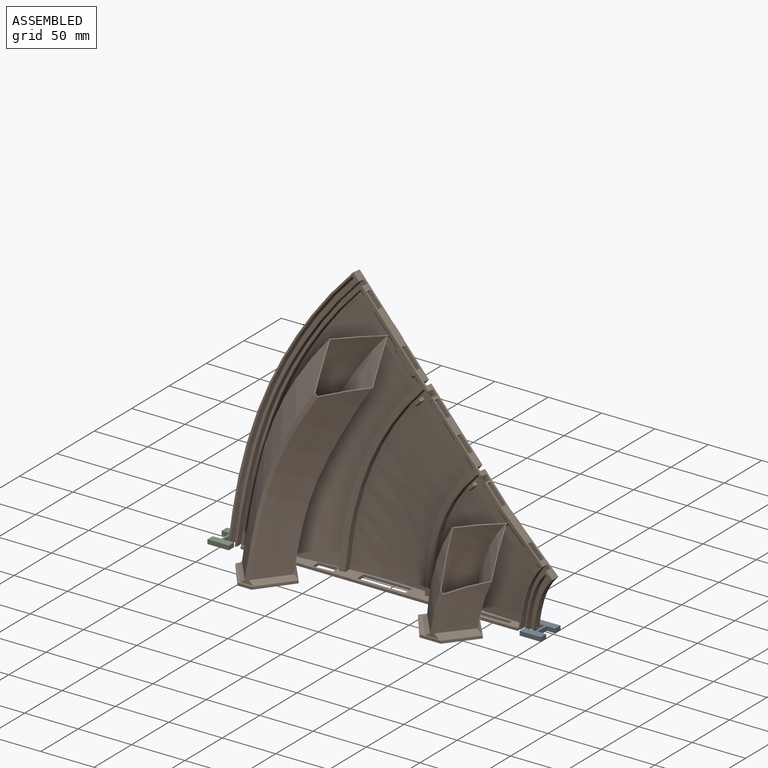
[diagram: assembled view]
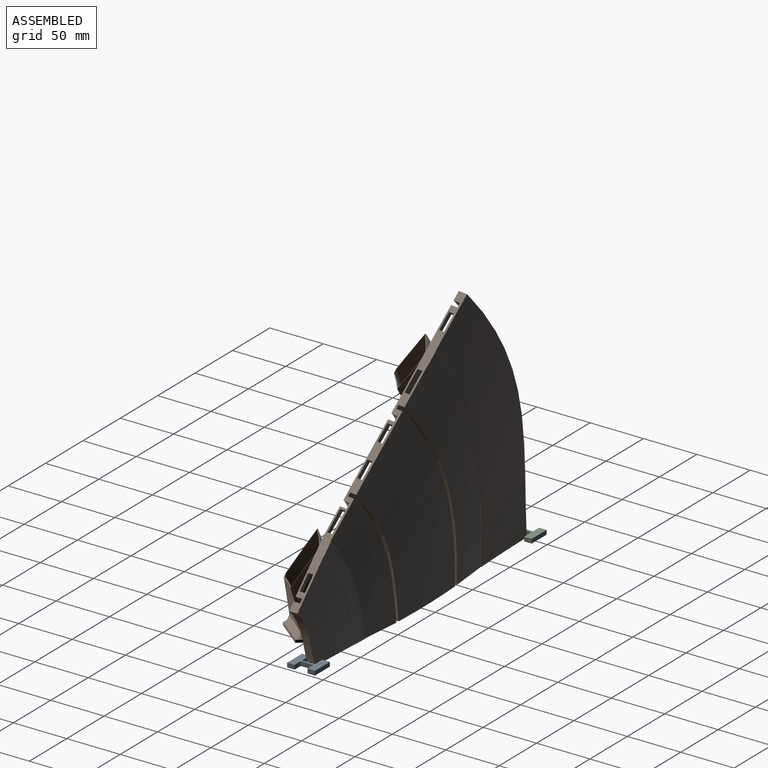
[diagram: assembled view, second angle]
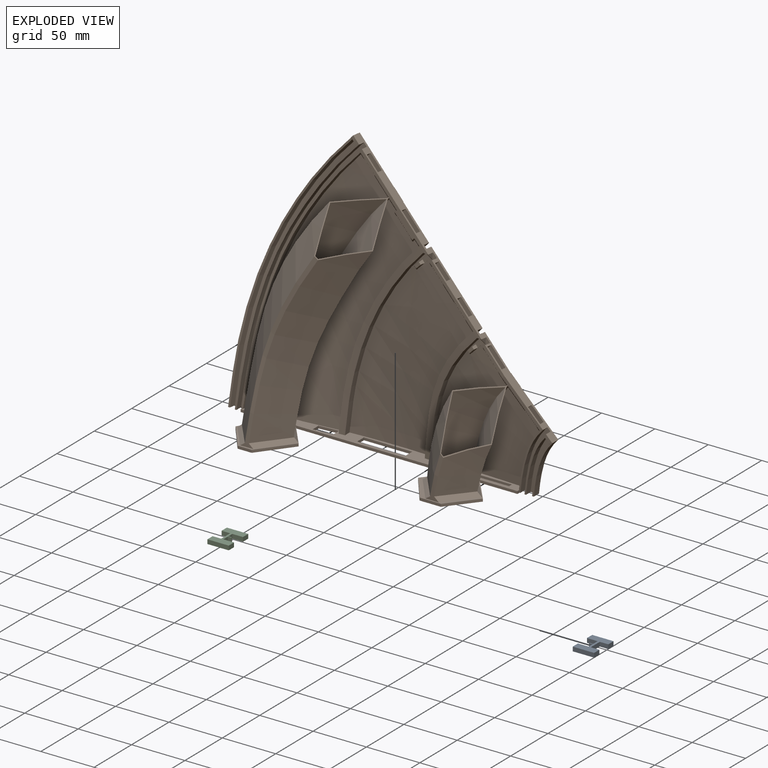
[diagram: exploded view]
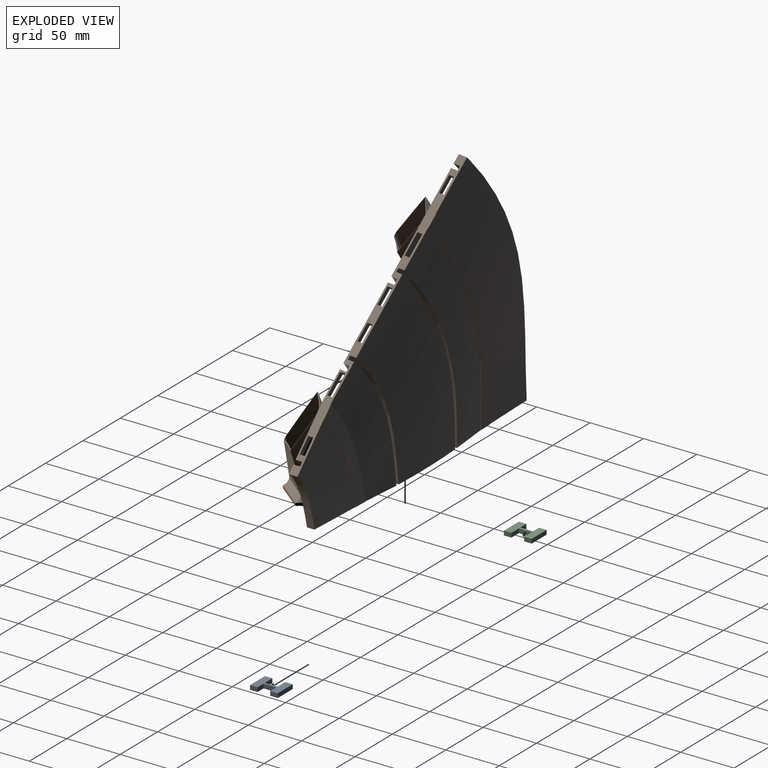
[diagram: exploded view, second angle]
ASSEMBLY  parts=3 mates=2
PART A: 18 faces, bbox 20x26x4 mm
  f0: plane 10x4mm, normal (0,1,0), area 40mm2, adj f1,f15,f16,f17
  f1: plane 6x4mm, normal (1,0,0), area 24mm2, adj f0,f2,f16,f17
  f2: plane 4x3.44mm, normal (0,-1,0), area 13.7mm2, adj f1,f3,f16,f17
  f3: plane 4x0.7mm, normal (1,0,0), area 2.8mm2, adj f2,f4,f16,f17
  f4: plane 4x3.44mm, normal (0,1,0), area 13.7mm2, adj f3,f5,f16,f17
  f5: plane 5.3x4mm, normal (1,0,0), area 21.2mm2, adj f4,f6,f16,f17
  f6: plane 10x4mm, normal (0,-1,0), area 40mm2, adj f5,f7,f16,f17
  f7: plane 7x4mm, normal (1,0,0), area 28mm2, adj f6,f8,f16,f17
  f8: plane 20x4mm, normal (0,1,0), area 80mm2, adj f7,f9,f16,f17
  f9: plane 7x4mm, normal (-1,0,0), area 28mm2, adj f8,f10,f16,f17
  f10: plane 8x4mm, normal (0,-1,0), area 32mm2, adj f9,f11,f16,f17
  f11: plane 12x4mm, normal (-1,0,0), area 48mm2, adj f10,f12,f16,f17
  f12: plane 8x4mm, normal (0,1,0), area 32mm2, adj f11,f13,f16,f17
  f13: plane 7x4mm, normal (-1,0,0), area 28mm2, adj f12,f14,f16,f17
  f14: plane 20x4mm, normal (0,-1,0), area 80mm2, adj f13,f15,f16,f17
  f15: plane 7x4mm, normal (1,0,0), area 28mm2, adj f0,f14,f16,f17
  f16: plane 26x20mm, normal (0,0,1), area 306.4mm2, adj f0,f1,f2,f3,f4,f5,f6,f7
  f17: plane 26x20mm, normal (0,0,-1), area 306.4mm2, adj f0,f1,f2,f3,f4,f5,f6,f7
PART B: 279 faces, bbox 304.8x404.9x88.9 mm
  f0: plane 6.18x4.77mm, normal (0.71,0.7,0.06), area 18.6mm2, adj f1,f143,f150,f194,f276
  f1: bspline ~224.14x154.76mm, area 4215.4mm2, adj f0,f2,f4,f38,f48,f53,f64,f65
  f2: plane 6.18x4.77mm, normal (-0.71,-0.7,-0.06), area 18.6mm2, adj f1,f3,f4,f5,f276
  f3: plane 5.69x3.08mm, normal (0,0.09,-1), area 13.7mm2, adj f2,f4,f5,f59,f65,f142
  f4: plane 0.08x0.01mm, normal (0,-1,-0.09), area 0mm2, adj f1,f2,f3,f65
  f5: plane 6.21x0.96mm, normal (0.71,-0.7,-0.06), area 3.6mm2, adj f2,f3,f59,f195
  f6: plane 6.18x4.77mm, normal (0.71,0.7,0.06), area 18.6mm2, adj f7,f12,f146,f148,f273
  f7: bspline ~276.83x267.27mm, area 11521.6mm2, adj f6,f9,f10,f38,f49,f54,f60,f63
  f8: plane 96.18x8.43mm, normal (0,0.09,-1), area 372.8mm2, adj f11,f12,f40,f43,f59,f60,f61,f106
  f9: plane 6.19x4.78mm, normal (-0.71,-0.7,-0.06), area 18.6mm2, adj f7,f10,f11,f273
  f10: plane 5.65x3.01mm, normal (0,0.09,-1), area 13.5mm2, adj f7,f9,f11,f59,f145
  f11: plane 6.21x0.9mm, normal (0.71,-0.7,-0.06), area 3.2mm2, adj f8,f9,f10,f59
  f12: plane 6.37x2.7mm, normal (0.71,-0.7,-0.06), area 19mm2, adj f6,f8,f60,f146
  f13: bspline ~224.13x147.85mm, area 2549.2mm2, adj f20,f22,f191,f203,f240,f241,f269
  f14: bspline ~224.14x143.78mm, area 3222.8mm2, adj f24,f38,f39,f191,f244,f252,f253,f266
  f15: bspline ~276.77x152.58mm, area 7204.8mm2, adj f29,f31,f192,f201,f226,f227,f263
  f16: bspline ~276.75x153.18mm, area 8553.4mm2, adj f33,f36,f43,f192,f230,f255,f260
  f17: plane 204.05x204.05mm, normal (0.71,-0.71,0), area 2806.1mm2, adj f41,f57,f58,f69,f70,f71,f72,f73
  f18: plane 51.4x44.19mm, normal (0.71,-0.71,0), area 1570.4mm2, adj f236,f237,f238,f239,f241,f242,f244,f245
  f19: plane 54.04x40.72mm, normal (0.71,-0.71,0), area 1354.8mm2, adj f222,f223,f224,f225,f227,f228,f230,f231
  f20: bspline ~224.14x142.86mm, area 3207.3mm2, adj f13,f23,f191,f203,f204,f240,f241,f265
  f21: bspline ~224.13x149.01mm, area 2489mm2, adj f25,f37,f42,f191,f199,f242,f250,f251
  f22: bspline ~224.14x146.91mm, area 1528.4mm2, adj f13,f27,f191,f240
  f23: bspline ~224.14x141.14mm, area 2196.3mm2, adj f20,f27,f191,f240
  f24: bspline ~224.14x141.62mm, area 2132.5mm2, adj f14,f26,f191,f253
  f25: bspline ~224.14x147.52mm, area 1388.3mm2, adj f21,f26,f191,f250
  f26: bspline ~41.18x34.78mm, area 162.6mm2, adj f24,f25,f191,f243,f250,f253
  f27: bspline ~36.33x24.57mm, area 112.4mm2, adj f22,f23,f191,f240
  f28: bspline ~276.77x155.21mm, area 7250.6mm2, adj f30,f38,f40,f192,f200,f228,f257,f262
  f29: bspline ~302.64x152.58mm, area 8456.9mm2, adj f15,f32,f192,f201,f202,f226,f227,f259
  f30: bspline ~276.77x151.93mm, area 6539.8mm2, adj f28,f34,f192,f256,f257
  f31: bspline ~183.93x112.04mm, area 6575.4mm2, adj f15,f35,f192,f226
  f32: bspline ~302.64x150.92mm, area 6642.8mm2, adj f29,f35,f192,f226
  f33: bspline ~276.71x151.56mm, area 6663.6mm2, adj f16,f34,f192,f254,f255
  f34: bspline ~163.78x93.47mm, area 684.5mm2, adj f30,f33,f192,f229,f254,f256
  f35: bspline ~160.37x84.69mm, area 510.8mm2, adj f31,f32,f192,f226
  f36: plane 31.19x31.19mm, normal (-0.71,0.71,0), area 231mm2, adj f16,f41,f43,f55,f56,f196,f197,f218
  f37: plane 31.47x31.47mm, normal (-0.71,0.71,0), area 319.1mm2, adj f21,f42,f47,f52,f57,f198,f199,f214
  f38: plane 120.52x120.52mm, normal (-0.71,0.71,0), area 1423.4mm2, adj f1,f7,f14,f28,f39,f40,f44,f45
  f39: bspline ~224.13x118.78mm, area 653mm2, adj f14,f38,f48,f110,f177,f191
  f40: bspline ~276.75x128.43mm, area 1613.7mm2, adj f8,f28,f38,f46,f187,f192
  f41: bspline ~302.64x127.6mm, area 401.5mm2, adj f17,f36,f56,f81,f106,f180,f181,f197
  f42: bspline ~86.4x36.31mm, area 650.1mm2, adj f21,f37,f52,f174,f178,f191
  f43: bspline ~276.75x128.43mm, area 1627.7mm2, adj f8,f16,f36,f55,f181,f188,f192
  f44: bspline ~276.83x126.75mm, area 1192.9mm2, adj f38,f45,f51,f185
  f45: bspline ~276.83x161.83mm, area 7435.1mm2, adj f38,f44,f46,f61,f135,f136,f160,f161
  f46: bspline ~276.78x133.87mm, area 1492.3mm2, adj f38,f40,f45,f187
  f47: bspline ~151.31x95.27mm, area 362.2mm2, adj f37,f52,f57,f178
  f48: bspline ~84.77x45.6mm, area 590mm2, adj f1,f38,f39,f177
  f49: bspline ~224.14x118.64mm, area 814mm2, adj f7,f38,f50,f168,f169
  f50: bspline ~224.14x124.59mm, area 794mm2, adj f38,f49,f53,f59,f66,f167,f193
  f51: bspline ~176.67x80.83mm, area 1163.9mm2, adj f38,f44,f54,f60,f183
  f52: bspline ~224.13x160.99mm, area 3173.7mm2, adj f37,f42,f47,f122,f123,f125,f178
  f53: bspline ~224.14x118.55mm, area 804.8mm2, adj f1,f38,f50,f68,f144
  f54: bspline ~276.83x126.75mm, area 1185.3mm2, adj f7,f38,f51,f60
  f55: bspline ~302.64x168.95mm, area 10122.8mm2, adj f36,f43,f56,f138,f140,f141,f188
  f56: bspline ~302.64x126.11mm, area 1610.1mm2, adj f36,f41,f55,f181,f188
  f57: bspline ~151.31x96.82mm, area 92.9mm2, adj f17,f37,f47,f85,f108,f109,f174,f198
  f58: bspline ~252.35x161.91mm, area 13054.5mm2, adj f17,f59,f83,f91,f104
  f59: plane 282.77x27.24mm, normal (-1,0,0), area 1615.9mm2, adj f3,f5,f8,f10,f11,f50,f58,f66
  f60: plane 7.09x6.32mm, normal (1,0,0), area 3mm2, adj f7,f8,f12,f51,f54
  f61: plane 9.01x6.25mm, normal (0,1,0.09), area 17.5mm2, adj f8,f45,f163,f182,f186
  f62: plane 7.97x0.71mm, normal (1,0,0), area 0.1mm2, adj f83,f104
  f63: plane 21.29x5.35mm, normal (0,1,-0.05), area 44.2mm2, adj f7,f146,f147,f149,f154,f190
  f64: plane 21.2x5.57mm, normal (0,1,-0.05), area 44.6mm2, adj f1,f68,f143,f151,f152,f153,f189
  f65: plane 25.47x2.24mm, normal (1,0,0), area 0mm2, adj f1,f3,f4,f118,f171
  f66: plane 62.99x5.53mm, normal (0,0.09,-1), area 189.6mm2, adj f50,f59,f145,f167
  f67: plane 28.24x3.1mm, normal (0,0.09,-1), area 87.9mm2, adj f59,f110,f142,f172
  f68: plane 2.02x0.19mm, normal (1,0,0), area 0mm2, adj f1,f53,f64,f143
  f69: bspline ~151.32x97.25mm, area 86.8mm2, adj f17,f70,f84,f112,f164
  f70: bspline ~151.32x96.68mm, area 291.7mm2, adj f17,f69,f71,f115,f164
  f71: bspline ~151.32x99.92mm, area 238.7mm2, adj f17,f70,f72,f115
  f72: bspline ~151.31x95.4mm, area 363.1mm2, adj f17,f71,f73,f115
  f73: bspline ~151.31x97mm, area 86.9mm2, adj f17,f72,f80,f114
  f74: bspline ~151.31x99.23mm, area 242.5mm2, adj f17,f80,f85,f113
  f75: bspline ~302.64x129.68mm, area 1052.4mm2, adj f17,f59,f81,f86,f107
  f76: bspline ~302.64x126.08mm, area 1680mm2, adj f17,f77,f82,f103
  f77: bspline ~302.64x130.08mm, area 1234.6mm2, adj f17,f76,f78,f103
  f78: bspline ~302.64x127.21mm, area 1455mm2, adj f17,f77,f79,f103,f165
  f79: bspline ~302.64x127.67mm, area 471.4mm2, adj f17,f78,f83,f165
  f80: bspline ~151.31x95.37mm, area 370.3mm2, adj f17,f73,f74,f113
  f81: bspline ~302.64x126.1mm, area 1654.1mm2, adj f17,f41,f75,f106
  f82: bspline ~302.64x127.68mm, area 415.6mm2, adj f17,f59,f76,f86,f105
  f83: bspline ~302.64x126.06mm, area 1934.5mm2, adj f17,f58,f62,f79,f165
  f84: bspline ~151.32x95.55mm, area 393.3mm2, adj f17,f59,f69,f102
  f85: bspline ~151.31x95.3mm, area 408.1mm2, adj f17,f57,f59,f74,f116
  f86: bspline ~302.64x126.09mm, area 1689.5mm2, adj f17,f59,f75,f82
  f87: bspline ~276.83x129.89mm, area 597.9mm2, adj f17,f59,f88,f95,f155,f156
  f88: bspline ~276.83x126.4mm, area 1168.4mm2, adj f17,f87,f96,f155
  f89: bspline ~224.14x121.97mm, area 404.4mm2, adj f17,f59,f90,f97,f157,f158
  f90: bspline ~224.14x118.46mm, area 800mm2, adj f17,f89,f98,f158
  f91: bspline ~276.75x125.31mm, area 71.9mm2, adj f17,f58,f59,f92
  f92: bspline ~276.78x138.28mm, area 2989.3mm2, adj f17,f59,f91,f93
  f93: bspline ~276.78x125.36mm, area 68.8mm2, adj f17,f59,f92,f94
  f94: bspline ~276.83x163.01mm, area 8032.9mm2, adj f17,f59,f93,f95,f156
  f95: bspline ~276.83x126.4mm, area 1182.5mm2, adj f17,f87,f94,f156
  f96: bspline ~276.83x200.07mm, area 12675.8mm2, adj f17,f59,f88,f97,f155,f157
  f97: bspline ~224.14x118.5mm, area 813.9mm2, adj f17,f89,f96,f157
  f98: bspline ~224.14x155.42mm, area 4711mm2, adj f17,f59,f90,f99,f158
  f99: bspline ~224.13x117.77mm, area 31.8mm2, adj f17,f59,f98,f100
  f100: bspline ~224.13x130.14mm, area 1336.3mm2, adj f17,f59,f99,f101
  f101: bspline ~224.13x117.16mm, area 28.7mm2, adj f17,f59,f100,f102
  f102: bspline ~224.13x170.07mm, area 3824.5mm2, adj f17,f59,f84,f101
  f103: plane 6.57x5.96mm, normal (1,0,0), area 31mm2, adj f76,f77,f78,f105
  f104: plane 7.98x3.01mm, normal (0,1,0.09), area 24mm2, adj f58,f59,f62,f105
  f105: plane 6.99x3mm, normal (0,0.09,-1), area 21mm2, adj f59,f82,f103,f104,f165
  f106: plane 6.31x1.51mm, normal (1,0,0), area 0.1mm2, adj f8,f41,f81,f107,f179
  f107: plane 6.19x3.01mm, normal (0,1,0.09), area 18.6mm2, adj f8,f59,f75,f106
  f108: plane 1.41x0.01mm, normal (1,0,0), area 0mm2, adj f57,f109,f110
  f109: plane 3.04x0.05mm, normal (0,-1,0), area 0mm2, adj f57,f108,f110
  f110: plane 50.87x3.12mm, normal (0,0,-1), area 153.2mm2, adj f39,f59,f67,f108,f109,f172,f174,f191
  f111: plane 6.2x3mm, normal (0,1,0), area 18.6mm2, adj f59,f113,f116,f117
  f112: plane 4.08x1.11mm, normal (0,-1,0), area 3.5mm2, adj f59,f69,f115,f117,f164
  f113: plane 6.21x4.01mm, normal (1,0,0), area 0.6mm2, adj f74,f80,f111,f116,f117
  f114: plane 1.5x0.01mm, normal (1,0,0), area 0mm2, adj f73,f117
  f115: plane 6.91x6.21mm, normal (1,0,0), area 30.5mm2, adj f70,f71,f72,f112,f117,f164
  f116: plane 4.01x3.01mm, normal (0,0,-1), area 11.9mm2, adj f59,f85,f111,f113
  f117: plane 8.5x3mm, normal (0,0,-1), area 25.5mm2, adj f59,f111,f112,f113,f114,f115
  f118: plane 20.72x3mm, normal (0,0.09,-1), area 62.4mm2, adj f59,f65,f119,f121,f173
  f119: plane 9.15x4.68mm, normal (0,-1,-0.09), area 32.2mm2, adj f59,f118,f120,f171,f176
  f120: plane 20.72x4.53mm, normal (0,-0.09,1), area 94.1mm2, adj f59,f119,f121,f170,f176
  f121: plane 4.68x3mm, normal (0,1,0.09), area 14.1mm2, adj f59,f118,f120,f173
  f122: plane 16.02x3.02mm, normal (0,0,-1), area 48mm2, adj f52,f59,f123,f125
  f123: plane 9.26x4.79mm, normal (0,-1,0), area 32.5mm2, adj f52,f59,f122,f124,f178
  f124: plane 16x4.55mm, normal (0,0,1), area 72.7mm2, adj f59,f123,f125,f178
  f125: plane 9.24x4.78mm, normal (0,1,0), area 32.4mm2, adj f52,f59,f122,f124,f178
  f126: plane 9.26x4.76mm, normal (0,-1,-0.09), area 32.5mm2, adj f7,f59,f127,f129,f169
  f127: plane 16.34x4.54mm, normal (0,-0.09,1), area 74.5mm2, adj f59,f126,f128,f166,f169
  f128: plane 4.69x3mm, normal (0,1,0.09), area 14.1mm2, adj f59,f127,f129,f166
  f129: plane 16.35x3.02mm, normal (0,0.09,-1), area 49.2mm2, adj f7,f59,f126,f128
  f130: plane 9.27x4.75mm, normal (0,-1,-0.09), area 32.5mm2, adj f7,f59,f131,f133,f169
  f131: plane 16.34x4.56mm, normal (0,-0.09,1), area 74.7mm2, adj f59,f130,f132,f169
  f132: plane 9.27x4.75mm, normal (0,1,0.09), area 32.5mm2, adj f7,f59,f131,f133,f169
  f133: plane 16.35x3.01mm, normal (0,0.09,-1), area 49.2mm2, adj f7,f59,f130,f132
  f134: plane 4.68x3mm, normal (0,1,0.09), area 14.1mm2, adj f59,f135,f137,f159
  f135: plane 20.73x3.01mm, normal (0,0.09,-1), area 62.4mm2, adj f45,f59,f134,f136
  f136: plane 12.26x4.81mm, normal (0,-1,-0.09), area 46.3mm2, adj f45,f59,f135,f137,f163
  f137: plane 20.72x7.47mm, normal (0,-0.09,1), area 155.2mm2, adj f59,f134,f136,f160,f163
  f138: plane 9.47x4.87mm, normal (0,-1,-0.09), area 32.6mm2, adj f55,f59,f139,f141,f188
  f139: plane 15.94x4.59mm, normal (0,-0.09,1), area 73.4mm2, adj f59,f138,f140,f188
  f140: plane 9.43x4.84mm, normal (0,1,0.09), area 32.6mm2, adj f55,f59,f139,f141,f188
  f141: plane 15.94x3mm, normal (0,0.09,-1), area 48mm2, adj f55,f59,f138,f140
  f142: plane 9.15x6.18mm, normal (0,1,0.09), area 37.9mm2, adj f3,f59,f67,f171,f172,f176
  f143: plane 12.42x5.23mm, normal (0,0.09,-1), area 37mm2, adj f0,f64,f68,f144,f150,f153,f194
  f144: plane 6.17x0.56mm, normal (-1,0,0), area 0.1mm2, adj f53,f143,f194
  f145: plane 9.27x6.24mm, normal (0,1,0.09), area 38.3mm2, adj f7,f10,f59,f66,f167,f168,f169
  f146: plane 12.48x5.24mm, normal (0,0.09,-1), area 37.3mm2, adj f6,f7,f12,f63,f148,f154
  f147: plane 6x2.49mm, normal (0,0.09,-1), area 15mm2, adj f63,f148,f149,f154
  f148: plane 20.37x5.29mm, normal (0,-1,-0.09), area 43.8mm2, adj f6,f7,f146,f147,f149,f154,f190
  f149: plane 2.52x0.43mm, normal (1,0,0), area 0.5mm2, adj f63,f147,f148,f190
  f150: plane 20.18x5.51mm, normal (0,-1,-0.09), area 44.2mm2, adj f0,f1,f143,f151,f152,f153,f189
  f151: plane 6x2.49mm, normal (0,0.09,-1), area 15mm2, adj f64,f150,f152,f153
  f152: plane 2.55x0.65mm, normal (1,0,0), area 1.1mm2, adj f64,f150,f151,f189
  f153: plane 5.26x3.19mm, normal (-1,0,0), area 14.3mm2, adj f64,f143,f150,f151
  f154: plane 5.26x3.19mm, normal (-1,0,0), area 14.3mm2, adj f63,f146,f147,f148
  f155: bspline ~6x3mm, area 18.1mm2, adj f59,f87,f88,f96
  f156: bspline ~6x3mm, area 18mm2, adj f59,f87,f94,f95
  f157: bspline ~6.01x3mm, area 18mm2, adj f59,f89,f96,f97
  f158: bspline ~6.61x3mm, area 18.1mm2, adj f59,f89,f90,f98
  f159: plane 4.69x0.41mm, normal (-1,0,0), area 0.1mm2, adj f134,f160
  f160: plane 9.25x4.83mm, normal (0,1,0.08), area 32.1mm2, adj f45,f137,f159,f163
  f161: plane 8.98x6.26mm, normal (0,-1,-0.09), area 17.4mm2, adj f8,f45,f162,f163,f184,f185
  f162: plane 25.67x2.26mm, normal (1,0,0), area 0.3mm2, adj f8,f161,f163
  f163: bspline ~26.22x8.44mm, area 86.9mm2, adj f45,f61,f136,f137,f160,f161,f162
  f164: bspline ~1.52x1mm, area 2.1mm2, adj f69,f70,f112,f115
  f165: bspline ~1.79x1.15mm, area 2.3mm2, adj f78,f79,f83,f105
  f166: plane 6.25x4.77mm, normal (0,1,0.09), area 18.3mm2, adj f7,f127,f128,f169
  f167: plane 62.99x5.52mm, normal (0,0.09,-1), area 6.3mm2, adj f50,f66,f145,f168
  f168: plane 62.98x5.53mm, normal (1,0,0), area 2mm2, adj f49,f145,f167,f169
  f169: bspline ~69.82x12.3mm, area 334.4mm2, adj f7,f49,f126,f127,f130,f131,f132,f145
  f170: plane 6.22x4.79mm, normal (0,1,0.07), area 18.2mm2, adj f1,f120,f173,f176
  f171: plane 6.15x1.79mm, normal (0,-0.09,1), area 11.1mm2, adj f65,f119,f142,f176
  f172: plane 34.91x2.51mm, normal (1,0,0), area 1.5mm2, adj f67,f110,f142,f176,f177
  f173: plane 4.7x0.41mm, normal (-1,0,0), area 0.2mm2, adj f118,f121,f170
  f174: plane 42.11x0.11mm, normal (0,0,-1), area 4.2mm2, adj f42,f57,f110,f175
  f175: plane 42.1x0.04mm, normal (1,0,0), area 0.2mm2, adj f174,f178
  f176: bspline ~29.46x8.73mm, area 113.2mm2, adj f1,f119,f120,f142,f170,f171,f172,f177
  f177: bspline ~6.67x6.25mm, area 53.1mm2, adj f1,f39,f48,f172,f176
  f178: bspline ~46.31x6.26mm, area 263.1mm2, adj f42,f47,f52,f123,f124,f125,f175
  f179: plane 0.2x0mm, normal (0,1,0.09), area 0mm2, adj f8,f106,f180,f181
  f180: plane 0.2x0mm, normal (0,1,0.09), area 0mm2, adj f41,f179,f181
  f181: plane 40.68x3.67mm, normal (1,0,0), area 4.5mm2, adj f8,f41,f43,f56,f179,f180,f188
  f182: plane 11.1x0.98mm, normal (1,0,0), area 0mm2, adj f8,f61,f186,f187
  f183: plane 7.13x0.63mm, normal (0,0.09,-1), area 1.4mm2, adj f8,f51,f184
  f184: plane 7.12x0.65mm, normal (1,0,0), area 0.2mm2, adj f161,f183,f185
  f185: bspline ~7.81x6.82mm, area 63.2mm2, adj f44,f45,f161,f184
  f186: bspline ~6.57x6.24mm, area 28.4mm2, adj f45,f61,f182,f187
  f187: bspline ~8.77x6.91mm, area 70.9mm2, adj f40,f46,f182,f186
  f188: bspline ~41.2x9.63mm, area 243.5mm2, adj f43,f55,f56,f138,f139,f140,f181
  f189: bspline ~5.35x4.89mm, area 20.6mm2, adj f1,f64,f150,f152
  f190: bspline ~5.38x4.98mm, area 20.6mm2, adj f7,f63,f148,f149
  f191: plane 53.48x53.01mm, normal (-0.71,0,-0.71), area 137.7mm2, adj f13,f14,f20,f21,f22,f23,f24,f25
  f192: plane 53.08x52.53mm, normal (-0.71,0.06,-0.7), area 133.2mm2, adj f8,f15,f16,f28,f29,f30,f31,f32
  f193: plane 3.02x0.03mm, normal (0,1,0.09), area 0mm2, adj f50,f195
  f194: plane 6.36x2.65mm, normal (0.71,-0.7,-0.06), area 18.6mm2, adj f0,f143,f144,f195
  f195: plane 3x2.99mm, normal (0,0.09,-1), area 4.5mm2, adj f5,f59,f193,f194,f276
  f196: plane 31.73x31.58mm, normal (0,0,-1), area 101.7mm2, adj f17,f36,f197,f258
  f197: plane 1.7x1.7mm, normal (0.71,0.71,0), area 3.3mm2, adj f17,f36,f41,f196
  f198: plane 2.8x1.7mm, normal (-0.71,-0.71,0), area 6.5mm2, adj f17,f37,f57,f199
  f199: plane 31.27x31.07mm, normal (0,0,-1), area 100mm2, adj f17,f21,f37,f198
  f200: plane 118.68x118.01mm, normal (0,0,-1), area 395.9mm2, adj f17,f28,f38,f264
  f201: plane 1.63x1.63mm, normal (-0.71,0.71,0), area 1.7mm2, adj f15,f29,f202
  f202: plane 3.47x3.01mm, normal (0,0,-1), area 5.2mm2, adj f17,f29,f201,f261
  f203: plane 3.48x3.48mm, normal (-0.71,0.71,0), area 7.4mm2, adj f13,f20,f204
  f204: plane 5.53x4.99mm, normal (0,0,-1), area 12.1mm2, adj f17,f20,f203,f267
  f205: plane 9.07x1.7mm, normal (-0.71,-0.71,0), area 18.9mm2, adj f17,f38,f206,f272
  f206: plane 33.66x33.66mm, normal (0,0,-1), area 108.5mm2, adj f17,f38,f205,f207
  f207: plane 9.07x1.7mm, normal (0.71,0.71,0), area 18.9mm2, adj f17,f38,f206,f272
  f208: plane 8.75x1.85mm, normal (-0.71,-0.71,-0.02), area 18.1mm2, adj f17,f38,f209,f270
  f209: plane 14.18x14.18mm, normal (0.03,0.03,-1), area 42.4mm2, adj f17,f38,f208,f210
  f210: plane 8.75x1.94mm, normal (0.71,0.71,0.04), area 18.1mm2, adj f17,f38,f209,f270
  f211: plane 8x1.8mm, normal (-0.71,-0.71,0.02), area 16.3mm2, adj f17,f38,f212,f271
  f212: plane 14.61x14.61mm, normal (-0.06,-0.06,-1), area 44mm2, adj f17,f38,f211,f213
  f213: plane 8.02x1.7mm, normal (0.71,0.71,0), area 16.3mm2, adj f17,f38,f212,f271
  f214: plane 3.7x1.7mm, normal (0.71,0.71,0), area 8.9mm2, adj f17,f37,f215,f217
  f215: plane 22.48x22.48mm, normal (0,0,1), area 70.5mm2, adj f17,f37,f214,f216
  f216: plane 3.7x1.7mm, normal (-0.71,-0.71,0), area 8.9mm2, adj f17,f37,f215,f217
  f217: plane 22.48x22.48mm, normal (0,0,-1), area 70.5mm2, adj f17,f37,f214,f216
  f218: plane 22.13x22.13mm, normal (0,0,1), area 69.4mm2, adj f17,f36,f219,f221
  f219: plane 4.45x1.7mm, normal (-0.71,-0.71,0), area 10.7mm2, adj f17,f36,f218,f220
  f220: plane 22.13x22.13mm, normal (0,0,-1), area 69.4mm2, adj f17,f36,f219,f221
  f221: plane 4.45x1.7mm, normal (0.71,0.71,0), area 10.7mm2, adj f17,f36,f218,f220
  f222: plane 19.93x14.53mm, normal (-0.52,-0.52,-0.67), area 67.2mm2, adj f19,f223,f225,f226
  f223: plane 19.3x13.08mm, normal (-0.54,-0.54,0.64), area 62.7mm2, adj f19,f222,f224,f226
  f224: plane 21.65x13.2mm, normal (0.57,0.57,0.6), area 67.5mm2, adj f19,f223,f225,f226
  f225: plane 17.57x11.75mm, normal (0.55,0.55,-0.63), area 56.4mm2, adj f19,f222,f224,f226
  f226: plane 52.01x32.25mm, normal (-0.71,0.71,0), area 640.1mm2, adj f15,f29,f31,f32,f35,f222,f223,f224
  f227: plane 5.67x5.59mm, normal (0,0,1), area 13.8mm2, adj f15,f19,f29,f226,f262,f263
  f228: plane 7.82x5.9mm, normal (0,0,1), area 24mm2, adj f19,f28,f229,f231,f257
  f229: plane 54.05x40.72mm, normal (-0.71,0.71,0), area 183.1mm2, adj f34,f228,f230,f231,f232,f233,f234,f235
  f230: plane 9.12x7.01mm, normal (0,0,1), area 25mm2, adj f16,f19,f229,f235,f255,f259,f260
  f231: plane 23.87x15.31mm, normal (-0.55,-0.55,0.63), area 76.5mm2, adj f19,f228,f229,f232
  f232: plane 30.17x17.91mm, normal (-0.56,-0.56,-0.6), area 94.6mm2, adj f19,f229,f231,f233
  f233: plane 11.14x11.14mm, normal (0,0,-1), area 33.1mm2, adj f19,f229,f232,f234
  f234: plane 27.99x16.98mm, normal (0.56,0.56,-0.61), area 88.3mm2, adj f19,f229,f233,f235
  f235: plane 26.06x15.61mm, normal (0.57,0.57,0.6), area 81.5mm2, adj f19,f229,f230,f234
  f236: plane 16.15x13.74mm, normal (-0.49,-0.49,-0.72), area 58.5mm2, adj f18,f237,f239,f240
  f237: plane 20.34x14.16mm, normal (-0.54,-0.54,0.65), area 67.1mm2, adj f18,f236,f238,f240
  f238: plane 18.74x12.42mm, normal (0.55,0.55,0.63), area 60.1mm2, adj f18,f237,f239,f240
  f239: plane 17.75x12.84mm, normal (0.53,0.53,-0.66), area 59.2mm2, adj f18,f236,f238,f240
  f240: plane 49.91x32.52mm, normal (-0.71,0.71,0), area 667.5mm2, adj f13,f20,f22,f23,f27,f236,f237,f238
  f241: plane 7.5x7.21mm, normal (0,0,1), area 19.8mm2, adj f13,f18,f20,f240,f268,f269
  f242: plane 8.48x6.35mm, normal (0,0,1), area 25.1mm2, adj f18,f21,f243,f245,f251
  f243: plane 51.48x44.27mm, normal (-0.71,0.71,0), area 370mm2, adj f26,f242,f244,f245,f246,f247,f248,f249
  f244: plane 10.61x8.33mm, normal (0,0,1), area 28.6mm2, adj f14,f18,f243,f249,f252,f265,f266
  f245: plane 25.11x16.22mm, normal (-0.55,-0.55,0.63), area 81mm2, adj f18,f242,f243,f246
  f246: plane 26.28x16.55mm, normal (-0.55,-0.55,-0.62), area 84mm2, adj f18,f243,f245,f247
  f247: plane 15.89x15.89mm, normal (0,0,-1), area 49.9mm2, adj f18,f243,f246,f248
  f248: plane 28.87x17.05mm, normal (0.57,0.57,-0.6), area 90.1mm2, adj f18,f243,f247,f249
  f249: plane 22.53x14.57mm, normal (0.55,0.55,0.63), area 72.3mm2, adj f18,f243,f244,f248
  f250: bspline ~33.97x23.41mm, area 179.7mm2, adj f21,f25,f26,f243,f251
  f251: bspline ~31.11x21.75mm, area 160.8mm2, adj f21,f242,f243,f250
  f252: bspline ~29.66x20.02mm, area 133.4mm2, adj f14,f243,f244,f253
  f253: bspline ~31.73x20.79mm, area 161.9mm2, adj f14,f24,f26,f243,f252
  f254: bspline ~30.4x20.07mm, area 152.3mm2, adj f33,f34,f229,f255
  f255: bspline ~30.21x20.1mm, area 154.4mm2, adj f16,f33,f229,f230,f254
  f256: bspline ~32.96x21.33mm, area 181.2mm2, adj f30,f34,f229,f257
  f257: bspline ~30.35x20.84mm, area 153.7mm2, adj f28,f30,f228,f229,f256
  f258: plane 2.2x2.06mm, normal (0,0,-1), area 1.5mm2, adj f17,f196,f259,f260
  f259: extruded ~2.67x2.67mm, area 5.3mm2, adj f29,f230,f258,f260
  f260: plane 1.75x1.34mm, normal (0.71,-0.71,0), area 0.9mm2, adj f16,f230,f258,f259
  f261: plane 2.24x1.91mm, normal (0,0,-1), area 1.3mm2, adj f17,f202,f262,f263
  f262: extruded ~2.71x2.71mm, area 5.4mm2, adj f28,f227,f261,f263
  f263: plane 1.75x1.23mm, normal (0.71,-0.71,0), area 0.5mm2, adj f15,f227,f261,f262
  f264: plane 2.23x1.89mm, normal (0,0,-1), area 1.2mm2, adj f17,f200,f265,f266
  f265: extruded ~2.53x2.53mm, area 4.4mm2, adj f20,f244,f264,f266
  f266: plane 1.42x1.03mm, normal (0.71,-0.71,0), area 0.4mm2, adj f14,f244,f264,f265
  f267: plane 2.21x2.02mm, normal (0,0,-1), area 1.4mm2, adj f17,f204,f268,f269
  f268: extruded ~2.51x2.51mm, area 4.4mm2, adj f21,f241,f267,f269
  f269: plane 1.42x1.13mm, normal (0.71,-0.71,0), area 0.6mm2, adj f13,f241,f267,f268
  f270: plane 14.16x14.05mm, normal (-0.52,0.48,0.71), area 59.6mm2, adj f17,f38,f208,f210
  f271: plane 14.54x14.5mm, normal (-0.46,0.54,0.7), area 61.8mm2, adj f17,f38,f211,f213
  f272: plane 33.66x33.66mm, normal (-0.5,0.5,0.71), area 153.4mm2, adj f17,f38,f205,f207
  f273: plane 5.86x5.42mm, normal (0.51,-0.45,-0.74), area 5.7mm2, adj f6,f7,f8,f9,f274,f275
  f274: plane 0.65x0.65mm, normal (-0.71,0.7,0.06), area 0mm2, adj f7,f273,f275
  f275: plane 0x0mm, normal (0.71,0.7,0.06), area 0mm2, adj f7,f273,f274
  f276: plane 5.87x5.41mm, normal (0.51,-0.45,-0.74), area 5.7mm2, adj f0,f1,f2,f195,f277,f278
  f277: plane 0.64x0.64mm, normal (-0.71,0.7,0.06), area 0mm2, adj f1,f276,f278
  f278: plane 0.01x0mm, normal (0.71,0.7,0.06), area 0mm2, adj f1,f276,f277
PART C: same geometry as A
PLACE A rot(axis=(0,0,-1),180deg) t=(204.43,68.93,0)mm
PLACE B rot(axis=(-0.28,0.68,0.68),148.6deg) t=(101.98,37.94,0)mm fixed
PLACE C at identity fixed
MATE planar B.f17 <-> A.f17  axis (0,0,-1) through (244.73,38.33,0)mm
MATE planar B.f17 <-> A.f17  axis (0,0,-1) through (244.75,34.83,0)mm
